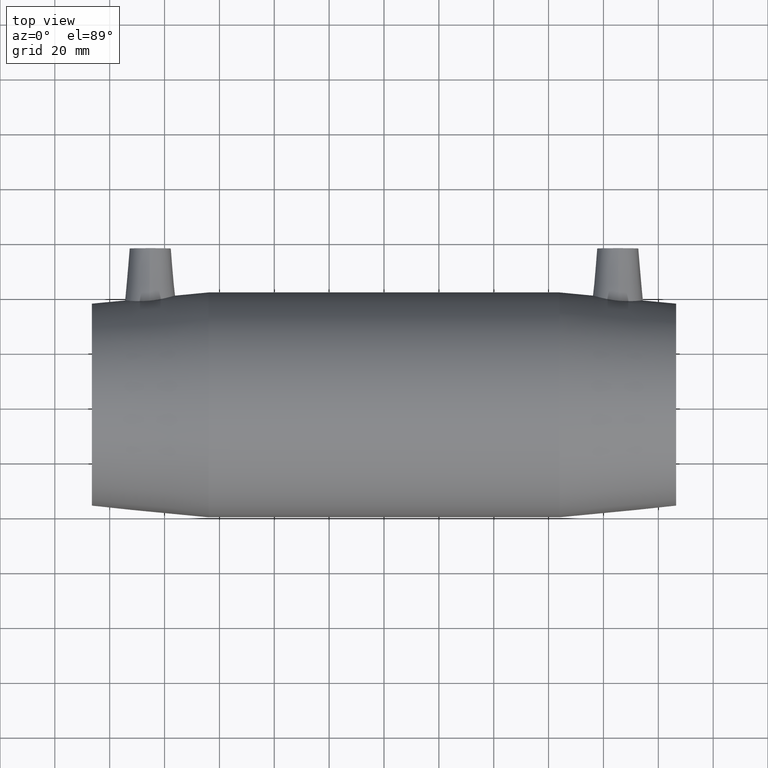
[diagram: clean part render]
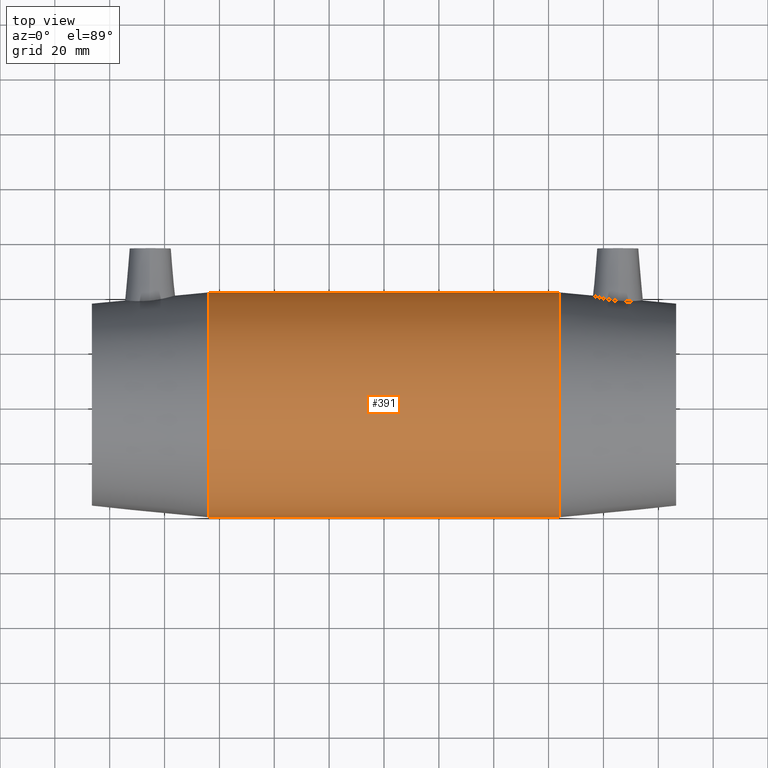
[diagram: same view with one face highlighted and labeled with its STEP entity id]
A machine part, top view. The second image highlights one B-rep face of the part: STEP entity #391.
In plain terms, the highlighted cylindrical surface (bore or boss wall) has radius 41 mm, axis along (1, 0, 0).
Its self-contained STEP definition (entity closure, byte-faithful):
#51=FACE_BOUND('',#172,.T.);
#52=FACE_BOUND('',#173,.T.);
#53=FACE_BOUND('',#174,.T.);
#87=CIRCLE('',#442,41.);
#88=CIRCLE('',#443,41.);
#121=FACE_OUTER_BOUND('',#171,.T.);
#171=EDGE_LOOP('',(#321));
#172=EDGE_LOOP('',(#322));
#173=EDGE_LOOP('',(#323));
#174=EDGE_LOOP('',(#324));
#211=B_SPLINE_CURVE_WITH_KNOTS('',3,(#684,#685,#686,#687,#688,#689,#690,
#691,#692,#693,#694,#695,#696,#697,#698,#699,#700,#701,#702,#703,#704,#705,
#706,#707,#708,#709,#710,#711,#712,#713,#714,#715,#716,#717),
 .UNSPECIFIED.,.T.,.F.,(4,2,2,2,2,2,2,2,2,2,2,2,2,2,2,2,4),(0.,0.474199388686049,
0.948398777372098,1.4223826141883,1.8963664510045,2.37050207170436,2.84463769240422,
3.31885910039788,3.79308050839154,4.2673019163852,4.74152332437886,5.21565894507872,
5.68979456577858,6.16377840259478,6.63776223941098,7.11196162809703,7.58616101678308),
 .UNSPECIFIED.);
#212=B_SPLINE_CURVE_WITH_KNOTS('',3,(#723,#724,#725,#726,#727,#728,#729,
#730,#731,#732,#733,#734,#735,#736,#737,#738,#739,#740,#741,#742,#743,#744,
#745,#746,#747,#748,#749,#750,#751,#752,#753,#754,#755,#756),
 .UNSPECIFIED.,.T.,.F.,(4,2,2,2,2,2,2,2,2,2,2,2,2,2,2,2,4),(0.,0.474210395921348,
0.948420791842696,1.42248005839744,1.89653932495219,2.37059859150694,2.84465785806169,
3.31886825398304,3.79307864990438,4.26728904582573,4.74149944174708,5.21555870830183,
5.68961797485658,6.16367724141132,6.63773650796607,7.11194690388742,7.58615729980877),
 .UNSPECIFIED.);
#220=VERTEX_POINT('',#683);
#222=VERTEX_POINT('',#722);
#235=VERTEX_POINT('',#861);
#236=VERTEX_POINT('',#863);
#256=EDGE_CURVE('',#220,#220,#211,.T.);
#258=EDGE_CURVE('',#222,#222,#212,.T.);
#271=EDGE_CURVE('',#235,#235,#87,.T.);
#272=EDGE_CURVE('',#236,#236,#88,.T.);
#321=ORIENTED_EDGE('',*,*,#271,.F.);
#322=ORIENTED_EDGE('',*,*,#256,.T.);
#323=ORIENTED_EDGE('',*,*,#258,.T.);
#324=ORIENTED_EDGE('',*,*,#272,.T.);
#367=CYLINDRICAL_SURFACE('',#441,41.);
#391=ADVANCED_FACE('',(#121,#51,#52,#53),#367,.T.);
#441=AXIS2_PLACEMENT_3D('',#860,#539,#540);
#442=AXIS2_PLACEMENT_3D('',#862,#541,#542);
#443=AXIS2_PLACEMENT_3D('',#864,#543,#544);
#539=DIRECTION('center_axis',(1.,0.,0.));
#540=DIRECTION('ref_axis',(0.,1.,0.));
#541=DIRECTION('center_axis',(1.,0.,0.));
#542=DIRECTION('ref_axis',(0.,0.,-1.));
#543=DIRECTION('center_axis',(1.,0.,0.));
#544=DIRECTION('ref_axis',(0.,0.,-1.));
#683=CARTESIAN_POINT('',(-32.5,-12.4462678413493,-39.0652072415006));
#684=CARTESIAN_POINT('Ctrl Pts',(-32.5,-12.4462678413493,-39.0652072415006));
#685=CARTESIAN_POINT('Ctrl Pts',(-30.9193353710465,-12.4462678413493,-39.0652072415006));
#686=CARTESIAN_POINT('Ctrl Pts',(-29.2407125123332,-12.1283091496617,-39.1707512053455));
#687=CARTESIAN_POINT('Ctrl Pts',(-26.1641516525794,-10.8495761796476,-39.5440300354946));
#688=CARTESIAN_POINT('Ctrl Pts',(-24.7652602330193,-9.88928541743211,-39.8055364580817));
#689=CARTESIAN_POINT('Ctrl Pts',(-22.5568694374313,-7.68071900702237,-40.2899999018732));
#690=CARTESIAN_POINT('Ctrl Pts',(-21.5964619831922,-6.28175578080044,-40.545510638029));
#691=CARTESIAN_POINT('Ctrl Pts',(-20.3177606559884,-3.20488661626602,-40.903882337181));
#692=CARTESIAN_POINT('Ctrl Pts',(-20.,-1.5262126072778,-41.0020353742114));
#693=CARTESIAN_POINT('Ctrl Pts',(-20.,1.63418287042356,-40.9978935445276));
#694=CARTESIAN_POINT('Ctrl Pts',(-20.3179430236691,3.31309245740089,-40.8952810046333));
#695=CARTESIAN_POINT('Ctrl Pts',(-21.5969487685503,6.39008856242263,-40.5285992645883));
#696=CARTESIAN_POINT('Ctrl Pts',(-22.5574688077978,7.7889590661777,-40.2692316378241));
#697=CARTESIAN_POINT('Ctrl Pts',(-24.7657706556457,9.99708372941323,-39.7786083187623));
#698=CARTESIAN_POINT('Ctrl Pts',(-26.1644262120368,10.9571741946424,-39.5143587423706));
#699=CARTESIAN_POINT('Ctrl Pts',(-29.2406884834447,12.2357438975618,-39.1373325958867));
#700=CARTESIAN_POINT('Ctrl Pts',(-30.9192619733545,12.5537321586507,-39.0308058959697));
#701=CARTESIAN_POINT('Ctrl Pts',(-34.0807380266455,12.5537321586507,-39.0308058959697));
#702=CARTESIAN_POINT('Ctrl Pts',(-35.7593115165554,12.2357438975618,-39.1373325958867));
#703=CARTESIAN_POINT('Ctrl Pts',(-38.8355737879633,10.9571741946424,-39.5143587423706));
#704=CARTESIAN_POINT('Ctrl Pts',(-40.2342293443543,9.99708372941323,-39.7786083187623));
#705=CARTESIAN_POINT('Ctrl Pts',(-42.4425311922022,7.7889590661777,-40.2692316378241));
#706=CARTESIAN_POINT('Ctrl Pts',(-43.4030512314497,6.39008856242263,-40.5285992645883));
#707=CARTESIAN_POINT('Ctrl Pts',(-44.6820569763309,3.31309245740089,-40.8952810046333));
#708=CARTESIAN_POINT('Ctrl Pts',(-45.,1.63418287042356,-40.9978935445276));
#709=CARTESIAN_POINT('Ctrl Pts',(-45.,-1.5262126072778,-41.0020353742114));
#710=CARTESIAN_POINT('Ctrl Pts',(-44.6822393440116,-3.20488661626602,-40.903882337181));
#711=CARTESIAN_POINT('Ctrl Pts',(-43.4035380168078,-6.28175578080045,-40.545510638029));
#712=CARTESIAN_POINT('Ctrl Pts',(-42.4431305625687,-7.68071900702237,-40.2899999018732));
#713=CARTESIAN_POINT('Ctrl Pts',(-40.2347397669807,-9.88928541743212,-39.8055364580817));
#714=CARTESIAN_POINT('Ctrl Pts',(-38.8358483474206,-10.8495761796476,-39.5440300354946));
#715=CARTESIAN_POINT('Ctrl Pts',(-35.7592874876668,-12.1283091496617,-39.1707512053455));
#716=CARTESIAN_POINT('Ctrl Pts',(-34.0806646289535,-12.4462678413493,-39.0652072415006));
#717=CARTESIAN_POINT('Ctrl Pts',(-32.5,-12.4462678413493,-39.0652072415006));
#722=CARTESIAN_POINT('',(32.5,-12.5,-39.0480473263389));
#723=CARTESIAN_POINT('Ctrl Pts',(32.5,-12.5,-39.0480473263389));
#724=CARTESIAN_POINT('Ctrl Pts',(34.0807013197378,-12.5,-39.0480473263389));
#725=CARTESIAN_POINT('Ctrl Pts',(35.7592996737076,-12.1820265277044,-39.154082303454));
#726=CARTESIAN_POINT('Ctrl Pts',(38.8357118650911,-10.9033747807062,-39.5292338851119));
#727=CARTESIAN_POINT('Ctrl Pts',(40.2344857837653,-9.9431837458984,-39.7921113662688));
#728=CARTESIAN_POINT('Ctrl Pts',(42.4428317933401,-7.73483773632358,-40.2796536736253));
#729=CARTESIAN_POINT('Ctrl Pts',(43.4032951497738,-6.33592119498814,-40.537092108392));
#730=CARTESIAN_POINT('Ctrl Pts',(44.6821482298026,-3.25898912081867,-40.8996176485206));
#731=CARTESIAN_POINT('Ctrl Pts',(45.,-1.5801975551825,-41.));
#732=CARTESIAN_POINT('Ctrl Pts',(45.,1.58019755518249,-41.));
#733=CARTESIAN_POINT('Ctrl Pts',(44.6821482298026,3.25898912081867,-40.8996176485206));
#734=CARTESIAN_POINT('Ctrl Pts',(43.4032951497738,6.33592119498814,-40.537092108392));
#735=CARTESIAN_POINT('Ctrl Pts',(42.4428317933401,7.73483773632358,-40.2796536736253));
#736=CARTESIAN_POINT('Ctrl Pts',(40.2344857837653,9.9431837458984,-39.7921113662688));
#737=CARTESIAN_POINT('Ctrl Pts',(38.8357118650911,10.9033747807062,-39.5292338851119));
#738=CARTESIAN_POINT('Ctrl Pts',(35.7592996737076,12.1820265277044,-39.154082303454));
#739=CARTESIAN_POINT('Ctrl Pts',(34.0807013197378,12.5,-39.0480473263389));
#740=CARTESIAN_POINT('Ctrl Pts',(30.9192986802622,12.5,-39.0480473263389));
#741=CARTESIAN_POINT('Ctrl Pts',(29.2407003262924,12.1820265277044,-39.154082303454));
#742=CARTESIAN_POINT('Ctrl Pts',(26.1642881349089,10.9033747807062,-39.5292338851119));
#743=CARTESIAN_POINT('Ctrl Pts',(24.7655142162347,9.94318374589841,-39.7921113662688));
#744=CARTESIAN_POINT('Ctrl Pts',(22.5571682066599,7.73483773632358,-40.2796536736253));
#745=CARTESIAN_POINT('Ctrl Pts',(21.5967048502262,6.33592119498815,-40.537092108392));
#746=CARTESIAN_POINT('Ctrl Pts',(20.3178517701974,3.25898912081868,-40.8996176485206));
#747=CARTESIAN_POINT('Ctrl Pts',(20.,1.5801975551825,-41.));
#748=CARTESIAN_POINT('Ctrl Pts',(20.,-1.58019755518249,-41.));
#749=CARTESIAN_POINT('Ctrl Pts',(20.3178517701974,-3.25898912081867,-40.8996176485206));
#750=CARTESIAN_POINT('Ctrl Pts',(21.5967048502262,-6.33592119498814,-40.537092108392));
#751=CARTESIAN_POINT('Ctrl Pts',(22.5571682066599,-7.73483773632358,-40.2796536736253));
#752=CARTESIAN_POINT('Ctrl Pts',(24.7655142162347,-9.9431837458984,-39.7921113662688));
#753=CARTESIAN_POINT('Ctrl Pts',(26.1642881349089,-10.9033747807062,-39.5292338851119));
#754=CARTESIAN_POINT('Ctrl Pts',(29.2407003262924,-12.1820265277044,-39.154082303454));
#755=CARTESIAN_POINT('Ctrl Pts',(30.9192986802622,-12.5,-39.0480473263389));
#756=CARTESIAN_POINT('Ctrl Pts',(32.5,-12.5,-39.0480473263389));
#860=CARTESIAN_POINT('Origin',(0.,0.,0.));
#861=CARTESIAN_POINT('',(63.9,41.,0.));
#862=CARTESIAN_POINT('Origin',(63.9,0.,0.));
#863=CARTESIAN_POINT('',(-63.9,41.,0.));
#864=CARTESIAN_POINT('Origin',(-63.9,0.,0.));